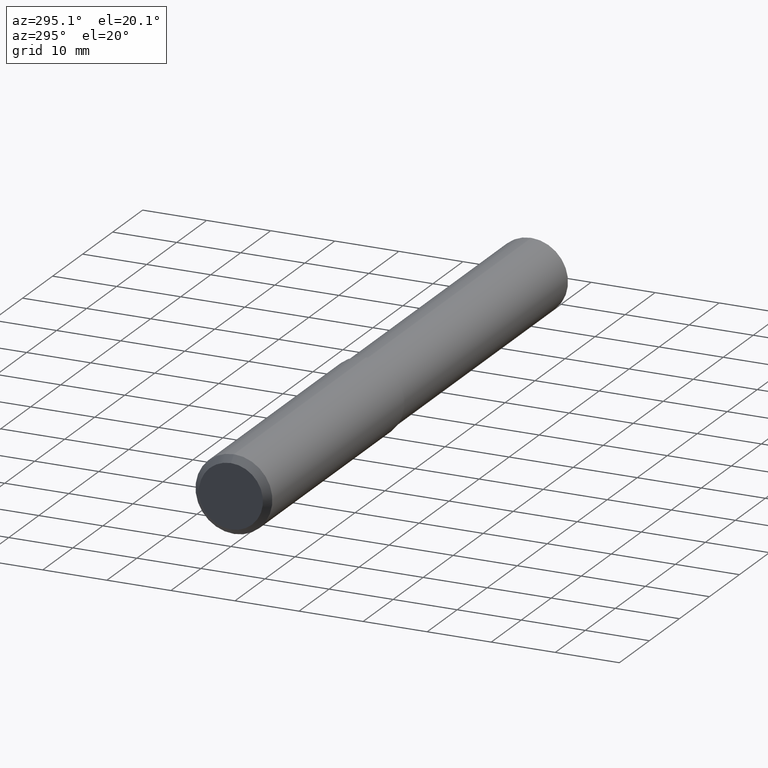
[diagram: clean part render]
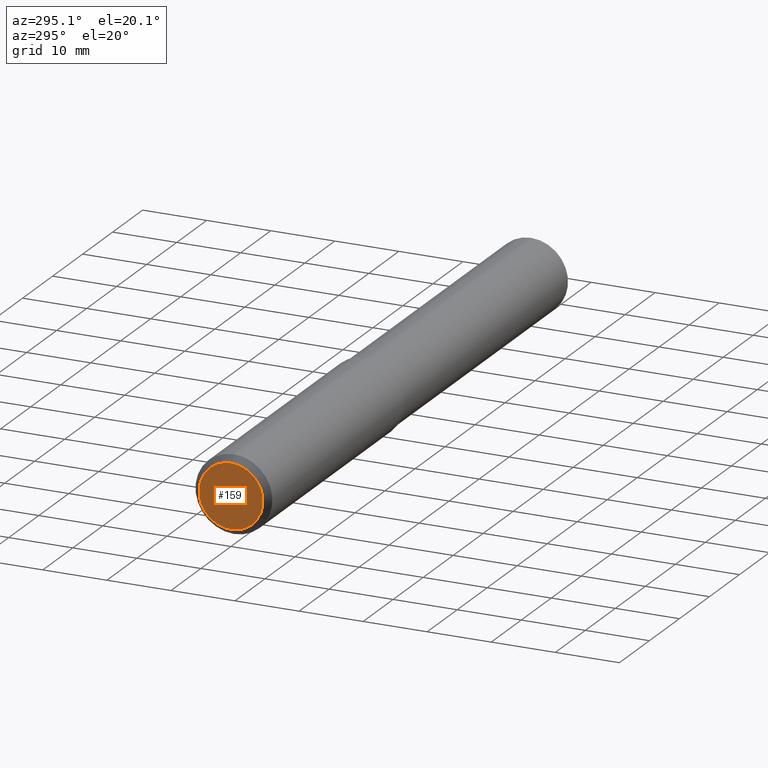
[diagram: same view with one face highlighted and labeled with its STEP entity id]
A machine part, auxiliary view. The second image highlights one B-rep face of the part: STEP entity #159.
In plain terms, the highlighted planar face has unit normal (-1, 0, 0).
Its self-contained STEP definition (entity closure, byte-faithful):
#22 = FACE_OUTER_BOUND ( 'NONE', #267, .T. ) ;
#24 = DIRECTION ( 'NONE',  ( -1.000000000000000000, 0.000000000000000000, 0.000000000000000000 ) ) ;
#27 = DIRECTION ( 'NONE',  ( 0.000000000000000000, 0.000000000000000000, 1.000000000000000000 ) ) ;
#32 = DIRECTION ( 'NONE',  ( 0.000000000000000000, 0.000000000000000000, -1.000000000000000000 ) ) ;
#77 = DIRECTION ( 'NONE',  ( 1.000000000000000000, -0.000000000000000000, -0.000000000000000000 ) ) ;
#83 = CARTESIAN_POINT ( 'NONE',  ( 1.186075246418296407E-18, 0.1968503937007874405, 0.000000000000000000 ) ) ;
#105 = CARTESIAN_POINT ( 'NONE',  ( 4.268512490100411279E-18, 0.000000000000000000, -0.1968503937007874405 ) ) ;
#121 = VERTEX_POINT ( 'NONE', #342 ) ;
#159 = ADVANCED_FACE ( 'NONE', ( #22 ), #222, .T. ) ;
#160 = CIRCLE ( 'NONE', #354, 0.1968503937007874405 ) ;
#175 = ORIENTED_EDGE ( 'NONE', *, *, #296, .F. ) ;
#213 = EDGE_CURVE ( 'NONE', #232, #121, #368, .T. ) ;
#216 = ORIENTED_EDGE ( 'NONE', *, *, #213, .F. ) ;
#222 = PLANE ( 'NONE',  #233 ) ;
#232 = VERTEX_POINT ( 'NONE', #105 ) ;
#233 = AXIS2_PLACEMENT_3D ( 'NONE', #83, #24, #27 ) ;
#245 = CARTESIAN_POINT ( 'NONE',  ( 4.268512490100411279E-18, 0.000000000000000000, 0.000000000000000000 ) ) ;
#253 = AXIS2_PLACEMENT_3D ( 'NONE', #283, #77, #378 ) ;
#267 = EDGE_LOOP ( 'NONE', ( #216, #175 ) ) ;
#283 = CARTESIAN_POINT ( 'NONE',  ( 4.268512490100411279E-18, 0.000000000000000000, 0.000000000000000000 ) ) ;
#296 = EDGE_CURVE ( 'NONE', #121, #232, #160, .T. ) ;
#306 = DIRECTION ( 'NONE',  ( 1.000000000000000000, -0.000000000000000000, -0.000000000000000000 ) ) ;
#342 = CARTESIAN_POINT ( 'NONE',  ( 4.268512490100411279E-18, 2.651794250122222108E-17, 0.1968503937007874405 ) ) ;
#354 = AXIS2_PLACEMENT_3D ( 'NONE', #245, #306, #32 ) ;
#368 = CIRCLE ( 'NONE', #253, 0.1968503937007874405 ) ;
#378 = DIRECTION ( 'NONE',  ( 0.000000000000000000, 0.000000000000000000, -1.000000000000000000 ) ) ;